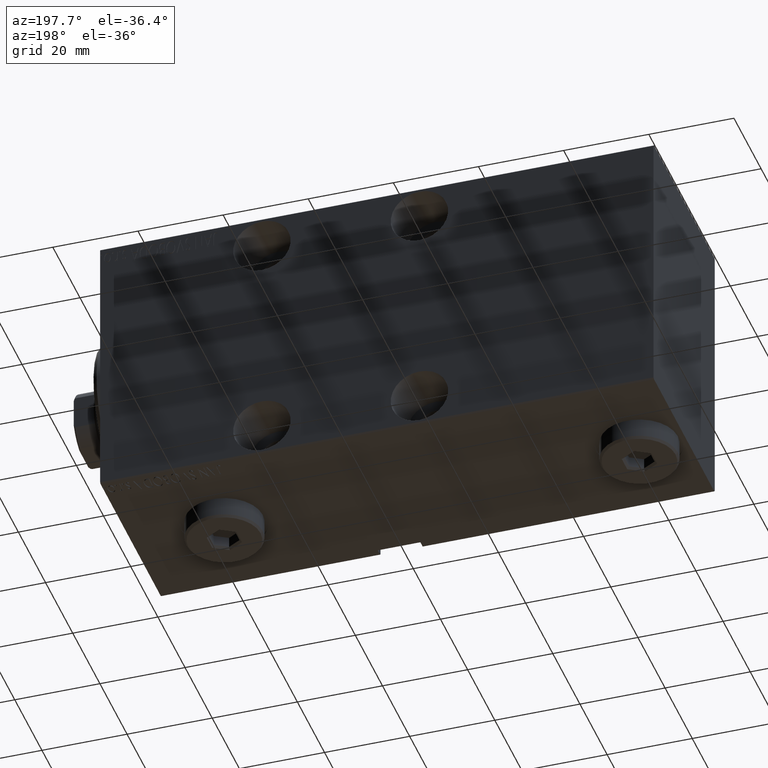
[diagram: clean part render]
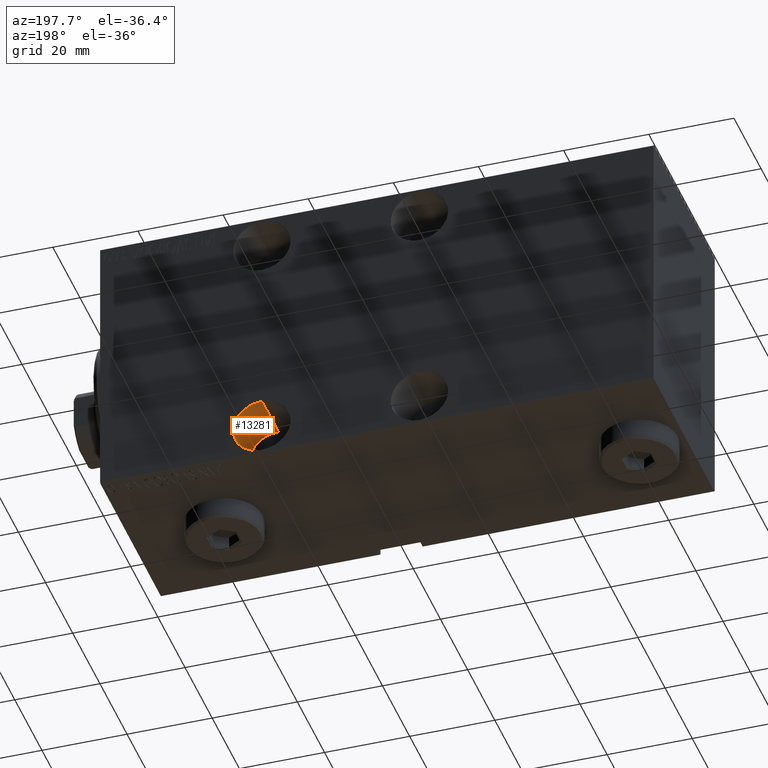
[diagram: same view with one face highlighted and labeled with its STEP entity id]
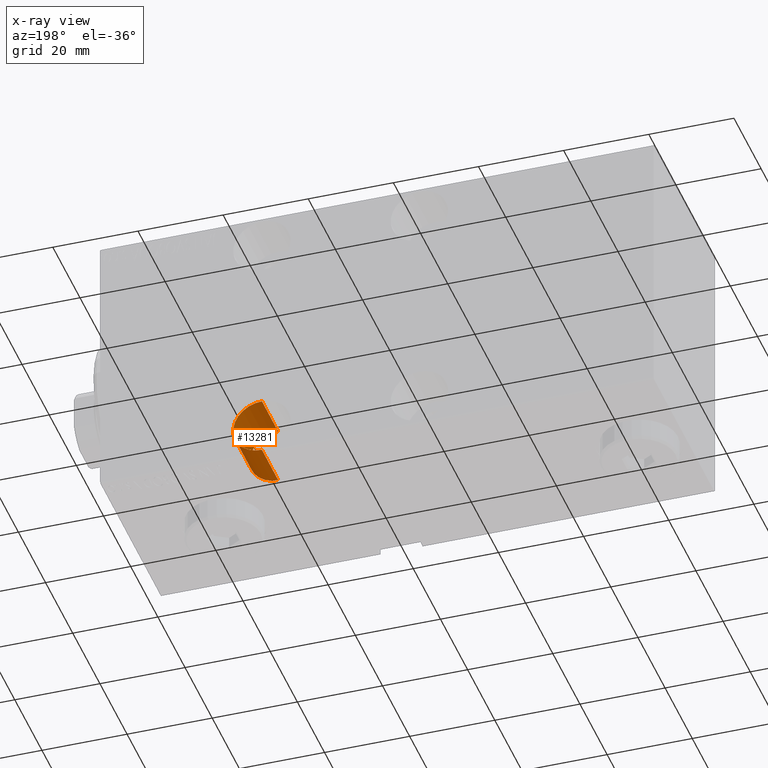
[diagram: x-ray of the same camera — body ghosted, the highlighted face saturated]
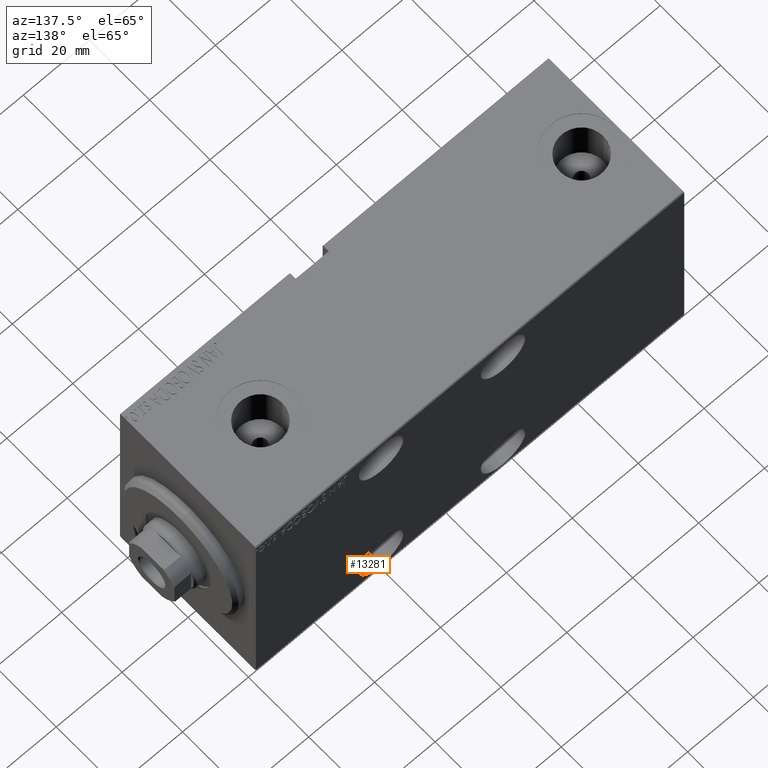
[diagram: same view with one face highlighted and labeled with its STEP entity id]
A machine part, auxiliary view. The second image highlights one B-rep face of the part: STEP entity #13281.
The next image is the same camera in x-ray: the body ghosted, the highlighted face saturated — about 0% of this face is hidden behind the body in this view.
A second angle (auxiliary view) of the same face is appended — the face is thin or edge-on in the first view.
In plain terms, the highlighted cylindrical surface (edge-blend (fillet) strip) has radius 6.75 mm, axis along (-0, 1, 0).
Its self-contained STEP definition (entity closure, byte-faithful):
#276 = VERTEX_POINT ( 'NONE', #31638 ) ;
#610 = DIRECTION ( 'NONE',  ( -0.000000000000000000, -1.000000000000000000, -0.000000000000000000 ) ) ;
#1016 = FACE_OUTER_BOUND ( 'NONE', #42177, .T. ) ;
#3134 = DIRECTION ( 'NONE',  ( 0.000000000000000000, 0.000000000000000000, -1.000000000000000000 ) ) ;
#3571 = DIRECTION ( 'NONE',  ( 0.000000000000000000, -1.000000000000000000, 0.000000000000000000 ) ) ;
#6100 = ORIENTED_EDGE ( 'NONE', *, *, #19447, .T. ) ;
#6276 = VECTOR ( 'NONE', #610, 1000.000000000000000 ) ;
#6509 = CARTESIAN_POINT ( 'NONE',  ( 38.00000000000001421, -10.49999999999999467, -25.00000000000000355 ) ) ;
#7381 = LINE ( 'NONE', #31462, #6276 ) ;
#7816 = CARTESIAN_POINT ( 'NONE',  ( 38.00000000000001421, -22.49999999999999645, -18.25000000000000355 ) ) ;
#9193 = CIRCLE ( 'NONE', #33670, 6.750000000000002665 ) ;
#9282 = DIRECTION ( 'NONE',  ( 0.000000000000000000, 0.000000000000000000, -1.000000000000000000 ) ) ;
#13114 = VERTEX_POINT ( 'NONE', #36432 ) ;
#13281 = ADVANCED_FACE ( 'NONE', ( #1016 ), #24662, .F. ) ;
#14743 = CARTESIAN_POINT ( 'NONE',  ( 38.00000000000001421, -10.49999999999999467, -25.00000000000000355 ) ) ;
#15785 = VECTOR ( 'NONE', #20713, 1000.000000000000000 ) ;
#17068 = AXIS2_PLACEMENT_3D ( 'NONE', #6509, #3571, #3134 ) ;
#18371 = EDGE_CURVE ( 'NONE', #13114, #43153, #7381, .T. ) ;
#18612 = EDGE_CURVE ( 'NONE', #13114, #19573, #38651, .T. ) ;
#19447 = EDGE_CURVE ( 'NONE', #43153, #276, #9193, .T. ) ;
#19573 = VERTEX_POINT ( 'NONE', #20516 ) ;
#19652 = CARTESIAN_POINT ( 'NONE',  ( 38.00000000000001421, -22.49999999999999645, -25.00000000000000355 ) ) ;
#20516 = CARTESIAN_POINT ( 'NONE',  ( 38.00000000000001421, -10.49999999999999467, -31.75000000000000711 ) ) ;
#20713 = DIRECTION ( 'NONE',  ( -0.000000000000000000, -1.000000000000000000, -0.000000000000000000 ) ) ;
#22718 = ORIENTED_EDGE ( 'NONE', *, *, #23960, .F. ) ;
#23960 = EDGE_CURVE ( 'NONE', #19573, #276, #33578, .T. ) ;
#24662 = CYLINDRICAL_SURFACE ( 'NONE', #42314, 6.750000000000002665 ) ;
#31305 = ORIENTED_EDGE ( 'NONE', *, *, #18612, .F. ) ;
#31462 = CARTESIAN_POINT ( 'NONE',  ( 38.00000000000001421, -10.49999999999999467, -18.25000000000000711 ) ) ;
#31638 = CARTESIAN_POINT ( 'NONE',  ( 38.00000000000001421, -22.49999999999999645, -31.75000000000000711 ) ) ;
#32780 = ORIENTED_EDGE ( 'NONE', *, *, #18371, .T. ) ;
#33578 = LINE ( 'NONE', #37622, #15785 ) ;
#33670 = AXIS2_PLACEMENT_3D ( 'NONE', #19652, #40573, #9282 ) ;
#35030 = DIRECTION ( 'NONE',  ( 0.000000000000000000, 0.000000000000000000, -1.000000000000000000 ) ) ;
#36432 = CARTESIAN_POINT ( 'NONE',  ( 38.00000000000001421, -10.49999999999999467, -18.25000000000000355 ) ) ;
#37622 = CARTESIAN_POINT ( 'NONE',  ( 38.00000000000001421, -10.49999999999999467, -31.75000000000000711 ) ) ;
#38414 = DIRECTION ( 'NONE',  ( -0.000000000000000000, -1.000000000000000000, -0.000000000000000000 ) ) ;
#38651 = CIRCLE ( 'NONE', #17068, 6.750000000000002665 ) ;
#40573 = DIRECTION ( 'NONE',  ( 0.000000000000000000, -1.000000000000000000, 0.000000000000000000 ) ) ;
#42177 = EDGE_LOOP ( 'NONE', ( #31305, #32780, #6100, #22718 ) ) ;
#42314 = AXIS2_PLACEMENT_3D ( 'NONE', #14743, #38414, #35030 ) ;
#43153 = VERTEX_POINT ( 'NONE', #7816 ) ;